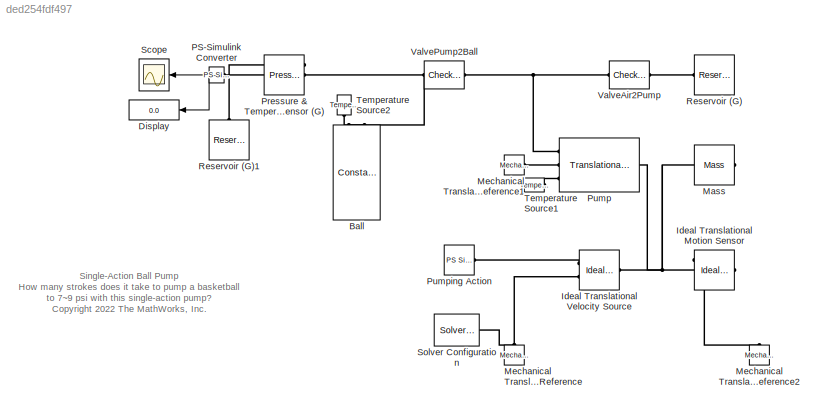
MODEL slx_ded254fdf497
KIND model
CONFIG AbsTol = 1e-5
CONFIG EnableMultiTasking = off
CONFIG FixedStep = auto
CONFIG MaxStep = auto
CONFIG MinStep = auto
CONFIG PreLoadFcn = paramBallPump;
CONFIG RelTol = 1e-5
CONFIG SampleTimeConstraint = Unconstrained
CONFIG SolverName = VariableStepAuto
CONFIG StartTime = 0.0
CONFIG StopTime = 60
BLOCK [Reference] Ball  REF=fl_lib/Gas/Elements/Constant Volume
Chamber (G)
  NameLocation = right
  Ports = [0, 0, 0, 0, 0, 2]
  SourceBlock = fl_lib/Gas/Elements/Constant Volume\nChamber (G)
  SourceProductBaseCode = SS
  SourceType = Constant Volume\nChamber (G)
BLOCK [Display] Display
  Decimation = 1
  Ports = [1]
BLOCK [Reference] Ideal Translational Motion Sensor  REF=fl_lib/Mechanical/Mechanical Sensors/Ideal Translational
Motion Sensor
  NameLocation = top
  Ports = [0, 0, 0, 0, 0, 1, 3]
  SourceBlock = fl_lib/Mechanical/Mechanical Sensors/Ideal Translational\nMotion Sensor
  SourceProductBaseCode = SS
  SourceType = Ideal Translational\nMotion Sensor
BLOCK [Reference] Ideal Translational Velocity Source  REF=fl_lib/Mechanical/Mechanical Sources/Ideal Translational
Velocity Source
  Ports = [0, 0, 0, 0, 0, 1, 2]
  SourceBlock = fl_lib/Mechanical/Mechanical Sources/Ideal Translational\nVelocity Source
  SourceProductBaseCode = SS
  SourceType = Ideal Translational\nVelocity Source
BLOCK [Reference] Mass  REF=fl_lib/Mechanical/Translational
Elements/Mass
  NameLocation = top
  Ports = [0, 0, 0, 0, 0, 1]
  SourceBlock = fl_lib/Mechanical/Translational\nElements/Mass
  SourceProductBaseCode = SS
  SourceType = Mass
BLOCK [Reference] Mechanical Translational Reference  REF=fl_lib/Mechanical/Translational
Elements/Mechanical
Translational
Reference
  NameLocation = right
  Ports = [0, 0, 0, 0, 0, 1]
  SourceBlock = fl_lib/Mechanical/Translational\nElements/Mechanical\nTranslational\nReference
  SourceProductBaseCode = SS
  SourceType = Mechanical\nTranslational\nReference
BLOCK [Reference] Mechanical Translational Reference1  REF=fl_lib/Mechanical/Translational
Elements/Mechanical
Translational
Reference
  Ports = [0, 0, 0, 0, 0, 1]
  SourceBlock = fl_lib/Mechanical/Translational\nElements/Mechanical\nTranslational\nReference
  SourceProductBaseCode = SS
  SourceType = Mechanical\nTranslational\nReference
BLOCK [Reference] Mechanical Translational Reference2  REF=fl_lib/Mechanical/Translational
Elements/Mechanical
Translational
Reference
  NameLocation = right
  Ports = [0, 0, 0, 0, 0, 1]
  SourceBlock = fl_lib/Mechanical/Translational\nElements/Mechanical\nTranslational\nReference
  SourceProductBaseCode = SS
  SourceType = Mechanical\nTranslational\nReference
BLOCK [Reference] PS-Simulink Converter  REF=nesl_utility/PS-Simulink
Converter
  Ports = [0, 1, 0, 0, 0, 1]
  SourceBlock = nesl_utility/PS-Simulink\nConverter
  SourceProductBaseCode = PW,SS
  SourceType = PS-Simulink\nConverter
BLOCK [Reference] Pressure & Temperature Sensor (G)  REF=fl_lib/Gas/Sensors/Pressure &
Temperature Sensor
(G)
  NameLocation = top
  Ports = [0, 0, 0, 0, 0, 1, 3]
  SourceBlock = fl_lib/Gas/Sensors/Pressure &\nTemperature Sensor\n(G)
  SourceProductBaseCode = SS
  SourceType = Pressure &\nTemperature Sensor\n(G)
BLOCK [Reference] Pump  REF=fl_lib/Gas/Elements/Translational
Mechanical Converter
(G)
  Ports = [0, 0, 0, 0, 0, 3, 1]
  SourceBlock = fl_lib/Gas/Elements/Translational\nMechanical Converter\n(G)
  SourceProductBaseCode = SS
  SourceType = Translational\nMechanical Converter\n(G)
BLOCK [Reference] Pumping Action  REF=fl_lib/Physical Signals/Sources/PS Sine Wave
  Ports = [0, 0, 0, 0, 0, 0, 1]
  SourceBlock = fl_lib/Physical Signals/Sources/PS Sine Wave
  SourceProductBaseCode = SS
  SourceType = PS Sine Wave
BLOCK [Reference] Reservoir (G)  REF=fl_lib/Gas/Elements/Reservoir (G)
  NameLocation = top
  Ports = [0, 0, 0, 0, 0, 1]
  SourceBlock = fl_lib/Gas/Elements/Reservoir (G)
  SourceProductBaseCode = SS
  SourceType = Reservoir (G)
BLOCK [Reference] Reservoir (G)1  REF=fl_lib/Gas/Elements/Reservoir (G)
  NameLocation = right
  Ports = [0, 0, 0, 0, 0, 1]
  SourceBlock = fl_lib/Gas/Elements/Reservoir (G)
  SourceProductBaseCode = SS
  SourceType = Reservoir (G)
BLOCK [Scope] Scope
  Floating = off
  NumInputPorts = 1
  Ports = [1]
  ScopeSpecificationString = Simulink.scopes.TimeScopeBlockCfg('CurrentConfiguration', extmgr.ConfigurationSet(extmgr.Configuration('Core','General UI',true),extmgr.Configuration('Core','Source UI',true),extmgr.Configuration('Sources','WiredSimulink',true),extmgr.Configuration('Visuals','Time Domain',true,'SerializedDisplays',{struct('MinYLimReal','-1','MaxYLimReal','14','YLabelReal','','MinYLimMag','0.00000','MaxYLimMag','15...<+1370ch>
BLOCK [Reference] Solver Configuration  REF=nesl_utility/Solver
Configuration
  Ports = [0, 0, 0, 0, 0, 0, 1]
  SourceBlock = nesl_utility/Solver\nConfiguration
  SourceProductBaseCode = PW,SS
  SourceType = Solver\nConfiguration
BLOCK [Reference] Temperature Source1  REF=fl_lib/Thermal/Thermal Sources/Temperature Source
  Ports = [0, 0, 0, 0, 0, 1]
  SourceBlock = fl_lib/Thermal/Thermal Sources/Temperature Source
  SourceProductBaseCode = SS
  SourceType = Temperature Source
BLOCK [Reference] Temperature Source2  REF=fl_lib/Thermal/Thermal Sources/Temperature Source
  NameLocation = left
  Ports = [0, 0, 0, 0, 0, 1]
  SourceBlock = fl_lib/Thermal/Thermal Sources/Temperature Source
  SourceProductBaseCode = SS
  SourceType = Temperature Source
BLOCK [Reference] ValveAir2Pump  REF=SimscapeFluids_lib/Gas/Valves & Orifices/Directional Control
Valves/Check Valve (G)
  Ports = [0, 0, 0, 0, 0, 1, 1]
  SourceBlock = SimscapeFluids_lib/Gas/Valves & Orifices/Directional Control\nValves/Check Valve (G)
  SourceProductBaseCode = SH
  SourceType = Check Valve (G)
BLOCK [Reference] ValvePump2Ball  REF=SimscapeFluids_lib/Gas/Valves & Orifices/Directional Control
Valves/Check Valve (G)
  NameLocation = top
  Ports = [0, 0, 0, 0, 0, 1, 1]
  SourceBlock = SimscapeFluids_lib/Gas/Valves & Orifices/Directional Control\nValves/Check Valve (G)
  SourceProductBaseCode = SH
  SourceType = Check Valve (G)
ANNOTATION (root): Single-Action Ball Pump How many strokes does it take to pump a basketball to 7~9 psi with this single-action pump? <copyright redacted>
NET PS-Simulink Converter:1 -> Display:1, Scope:1
PNET net1: Ball:LConn1 -- Pressure & Temperature Sensor (G):LConn1 -- ValvePump2Ball:RConn1
PLINE Ball:LConn2 -- Temperature Source2:LConn1
PNET net2: Ideal Translational Motion Sensor:LConn1 -- Ideal Translational Velocity Source:LConn1 -- Mass:LConn1 -- Pump:RConn1
PLINE Ideal Translational Motion Sensor:RConn1 -- Mechanical Translational Reference2:LConn1
PLINE Ideal Translational Velocity Source:RConn1 -- Pumping Action:RConn1
PNET net3: Ideal Translational Velocity Source:RConn2 -- Mechanical Translational Reference:LConn1 -- Solver Configuration:RConn1
PLINE Mechanical Translational Reference1:LConn1 -- Pump:LConn2
PLINE PS-Simulink Converter:LConn1 -- Pressure & Temperature Sensor (G):RConn2
PLINE Pressure & Temperature Sensor (G):RConn1 -- Reservoir (G)1:LConn1
PNET net4: Pump:LConn1 -- ValveAir2Pump:RConn1 -- ValvePump2Ball:LConn1
PLINE Pump:LConn3 -- Temperature Source1:LConn1
PLINE Reservoir (G):LConn1 -- ValveAir2Pump:LConn1
note: NET lines group one-source signal fan-out (src -> all destinations, sorted); 1:1 wires keep LINE; PNET lines group multi-terminal physical nets as a canonical sorted terminal list (undirected conserving connections); 2-terminal nets keep the pairwise PLINE form
